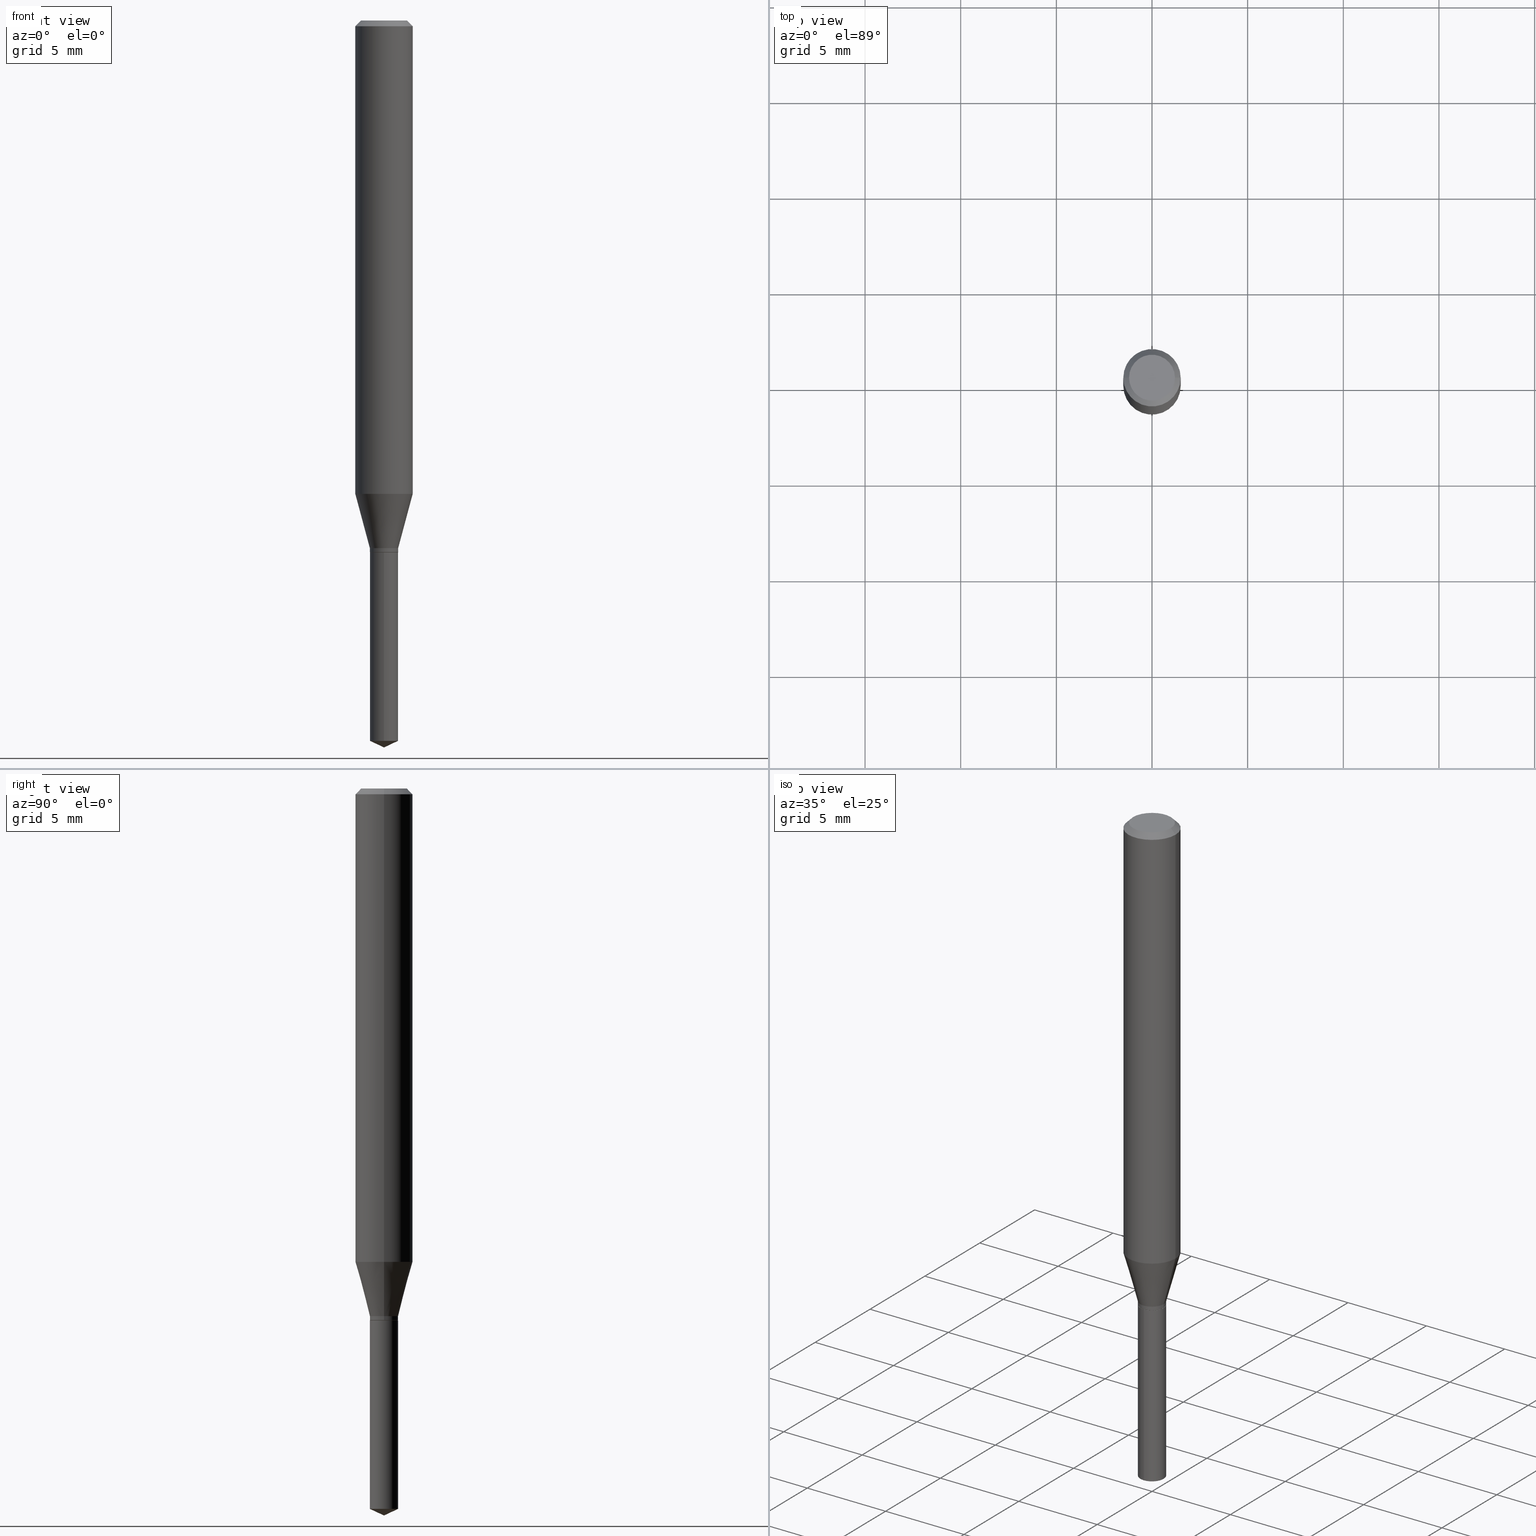
[diagram: canonical four-view strip — front | top / right | iso, engineering-drawing reading convention]
A machine part, canonical four-view strip (front | top / right | iso — engineering-drawing reading convention). The complete STEP part file that produces these views, byte-faithful:
ISO-10303-21;
HEADER;
FILE_DESCRIPTION (( 'STEP AP203' ),
    '1' );
FILE_NAME ('07882.STEP',
    '2024-04-24T05:15:20',
    ( '' ),
    ( '' ),
    'SwSTEP 2.0',
    'SolidWorks 2023',
    '' );
FILE_SCHEMA (( 'CONFIG_CONTROL_DESIGN' ));
ENDSEC;

DATA;
#1 = ORIENTED_EDGE ( 'NONE', *, *, #86, .F. ) ;
#2 = CIRCLE ( 'NONE', #338, 0.05904999999999999832 ) ;
#3 = LOCAL_TIME ( 1, 15, 20.00000000000000000, #38 ) ;
#4 = APPROVAL_ROLE ( '' ) ;
#5 = EDGE_CURVE ( 'NONE', #144, #96, #132, .T. ) ;
#6 = FACE_OUTER_BOUND ( 'NONE', #213, .T. ) ;
#7 = DIRECTION ( 'NONE',  ( -2.445468806185136597E-29, 3.491481338843145583E-15, 1.000000000000000000 ) ) ;
#8 = PRODUCT_DEFINITION ( 'UNKNOWN', '', #329, #336 ) ;
#9 = ORIENTED_EDGE ( 'NONE', *, *, #162, .T. ) ;
#10 = COORDINATED_UNIVERSAL_TIME_OFFSET ( 5, 0, .BEHIND. ) ;
#11 = DIRECTION ( 'NONE',  ( -1.000000000000000000, 6.982962677686265922E-15, -4.876176775795935793E-29 ) ) ;
#12 = CALENDAR_DATE ( 2024, 24, 4 ) ;
#13 = FACE_OUTER_BOUND ( 'NONE', #408, .T. ) ;
#14 = DIRECTION ( 'NONE',  ( 1.000000000000000000, -6.982962677686267499E-15, 4.876176775795936353E-29 ) ) ;
#15 = CONICAL_SURFACE ( 'NONE', #58, 0.02864999999999999838, 0.7853981633972733079 ) ;
#16 = CC_DESIGN_DATE_AND_TIME_ASSIGNMENT ( #41, #231, ( #8 ) ) ;
#17 = CIRCLE ( 'NONE', #354, 0.05904999999999999832 ) ;
#18 = SHAPE_DEFINITION_REPRESENTATION ( #248, #173 ) ;
#19 = DIRECTION ( 'NONE',  ( -2.445468806185136597E-29, 3.491481338843145583E-15, 1.000000000000000000 ) ) ;
#20 = ORIENTED_EDGE ( 'NONE', *, *, #358, .F. ) ;
#21 = DIRECTION ( 'NONE',  ( 1.000000000000000000, -6.982962677686266711E-15, 0.000000000000000000 ) ) ;
#22 = VECTOR ( 'NONE', #204, 39.37007874015748143 ) ;
#23 = ORIENTED_EDGE ( 'NONE', *, *, #162, .F. ) ;
#24 = DIRECTION ( 'NONE',  ( -2.445468806185136597E-29, 3.491481338843145583E-15, 1.000000000000000000 ) ) ;
#25 = ORIENTED_EDGE ( 'NONE', *, *, #5, .F. ) ;
#26 = CARTESIAN_POINT ( 'NONE',  ( -0.02914999999999999883, -3.598242303731074882E-15, -1.085799999999999876 ) ) ;
#27 = APPROVAL ( #387, 'UNSPECIFIED' ) ;
#28 = ORIENTED_EDGE ( 'NONE', *, *, #277, .T. ) ;
#29 = DIRECTION ( 'NONE',  ( -6.982962677686265922E-15, -1.000000000000000000, 4.685845615204568404E-15 ) ) ;
#30 = CC_DESIGN_APPROVAL ( #488, ( #238 ) ) ;
#31 = ORIENTED_EDGE ( 'NONE', *, *, #471, .F. ) ;
#32 = CARTESIAN_POINT ( 'NONE',  ( -0.05905000000000011628, -2.981866418317333587E-15, -0.9742116808536903649 ) ) ;
#33 = CC_DESIGN_PERSON_AND_ORGANIZATION_ASSIGNMENT ( #272, #35, ( #329 ) ) ;
#34 = VERTEX_POINT ( 'NONE', #431 ) ;
#35 = PERSON_AND_ORGANIZATION_ROLE ( 'design_supplier' ) ;
#36 = CIRCLE ( 'NONE', #228, 0.05905000000000011628 ) ;
#37 = CIRCLE ( 'NONE', #164, 0.04724000000000000421 ) ;
#38 = COORDINATED_UNIVERSAL_TIME_OFFSET ( 5, 0, .BEHIND. ) ;
#39 = DIRECTION ( 'NONE',  ( 0.000000000000000000, 0.000000000000000000, 1.000000000000000000 ) ) ;
#40 = MANIFOLD_SOLID_BREP ( 'Body-Move/Copy2[1]', #158 ) ;
#41 = DATE_AND_TIME ( #234, #68 ) ;
#42 = LINE ( 'NONE', #241, #242 ) ;
#43 = AXIS2_PLACEMENT_3D ( 'NONE', #464, #424, #390 ) ;
#44 = LINE ( 'NONE', #457, #170 ) ;
#45 = DIRECTION ( 'NONE',  ( -2.445470214571802396E-29, 3.491479321953280158E-15, 1.000000000000000000 ) ) ;
#46 = ADVANCED_FACE ( 'NONE', ( #292 ), #453, .T. ) ;
#47 = EDGE_LOOP ( 'NONE', ( #25, #84 ) ) ;
#48 = FACE_OUTER_BOUND ( 'NONE', #334, .T. ) ;
#49 = VECTOR ( 'NONE', #121, 39.37007874015747433 ) ;
#50 = AXIS2_PLACEMENT_3D ( 'NONE', #216, #484, #447 ) ;
#51 = DIRECTION ( 'NONE',  ( 1.000000000000000000, -6.982962677686266711E-15, 4.876176775795935793E-29 ) ) ;
#52 = CARTESIAN_POINT ( 'NONE',  ( 3.625425492141842925E-29, -5.176145202690960331E-15, -1.482507131764781771 ) ) ;
#53 = EDGE_CURVE ( 'NONE', #246, #339, #311, .T. ) ;
#54 = ORIENTED_EDGE ( 'NONE', *, *, #333, .F. ) ;
#55 = CARTESIAN_POINT ( 'NONE',  ( 2.676565608369631794E-29, -3.821426325363822773E-15, -1.094499999999999806 ) ) ;
#56 = VERTEX_POINT ( 'NONE', #370 ) ;
#57 = CARTESIAN_POINT ( 'NONE',  ( 3.625425492141842925E-29, -5.176145202690960331E-15, -1.482507131764781771 ) ) ;
#58 = AXIS2_PLACEMENT_3D ( 'NONE', #235, #122, #427 ) ;
#59 = CARTESIAN_POINT ( 'NONE',  ( 2.655290029755821085E-29, -3.791050437715887034E-15, -1.085799999999999876 ) ) ;
#60 = EDGE_CURVE ( 'NONE', #437, #104, #274, .T. ) ;
#61 = EDGE_LOOP ( 'NONE', ( #386, #54, #282, #258 ) ) ;
#62 = ORIENTED_EDGE ( 'NONE', *, *, #428, .T. ) ;
#63 = DIRECTION ( 'NONE',  ( 1.000000000000000000, -6.982962677686268288E-15, 0.000000000000000000 ) ) ;
#64 = ORIENTED_EDGE ( 'NONE', *, *, #53, .F. ) ;
#65 = PLANE ( 'NONE',  #201 ) ;
#66 = DIRECTION ( 'NONE',  ( -2.445468806185136597E-29, 3.491481338843145583E-15, 1.000000000000000000 ) ) ;
#67 = AXIS2_PLACEMENT_3D ( 'NONE', #52, #309, #399 ) ;
#68 = LOCAL_TIME ( 1, 15, 20.00000000000000000, #150 ) ;
#69 = CARTESIAN_POINT ( 'NONE',  ( 2.676565608369631794E-29, -3.821426325363822773E-15, -1.094499999999999806 ) ) ;
#70 = EDGE_CURVE ( 'NONE', #104, #437, #262, .T. ) ;
#71 = CARTESIAN_POINT ( 'NONE',  ( 2.676565608369632355E-29, -3.821426325363822773E-15, -1.094500000000000028 ) ) ;
#72 = PERSON_AND_ORGANIZATION_ROLE ( 'creator' ) ;
#73 = ORIENTED_EDGE ( 'NONE', *, *, #129, .T. ) ;
#74 = AXIS2_PLACEMENT_3D ( 'NONE', #167, #359, #51 ) ;
#75 = AXIS2_PLACEMENT_3D ( 'NONE', #468, #127, #21 ) ;
#76 = APPROVAL ( #80, 'UNSPECIFIED' ) ;
#77 =( NAMED_UNIT ( * ) SI_UNIT ( $, .STERADIAN. ) SOLID_ANGLE_UNIT ( ) );
#78 = CARTESIAN_POINT ( 'NONE',  ( 2.675342873966538993E-29, -3.819680584694400481E-15, -1.093999999999999861 ) ) ;
#79 = ORIENTED_EDGE ( 'NONE', *, *, #60, .T. ) ;
#80 = APPROVAL_STATUS ( 'not_yet_approved' ) ;
#81 = PLANE ( 'NONE',  #209 ) ;
#82 = PERSON_AND_ORGANIZATION ( #349, #111 ) ;
#83 = CARTESIAN_POINT ( 'NONE',  ( 2.655290029755821085E-29, -3.791050437715887034E-15, -1.085799999999999876 ) ) ;
#84 = ORIENTED_EDGE ( 'NONE', *, *, #301, .F. ) ;
#85 = CARTESIAN_POINT ( 'NONE',  ( 2.382404276148889621E-29, -3.401441903783673869E-15, -0.9742116808536903649 ) ) ;
#86 = EDGE_CURVE ( 'NONE', #96, #339, #260, .T. ) ;
#87 = UNCERTAINTY_MEASURE_WITH_UNIT (LENGTH_MEASURE( 1.000000000000000082E-05 ), #389, 'distance_accuracy_value', 'NONE');
#88 = DIRECTION ( 'NONE',  ( -0.7071067811865453523, 2.468850131082234184E-15, -0.7071067811865496822 ) ) ;
#89 = ADVANCED_FACE ( 'NONE', ( #482 ), #293, .T. ) ;
#90 = AXIS2_PLACEMENT_3D ( 'NONE', #128, #165, #240 ) ;
#91 = EDGE_LOOP ( 'NONE', ( #1, #224, #94, #116 ) ) ;
#92 = PLANE ( 'NONE',  #100 ) ;
#93 = DIRECTION ( 'NONE',  ( -2.445468806185136877E-29, 3.491481338843145188E-15, 1.000000000000000000 ) ) ;
#94 = ORIENTED_EDGE ( 'NONE', *, *, #404, .T. ) ;
#95 = CARTESIAN_POINT ( 'NONE',  ( 0.02914999999999999883, -3.994603799770441449E-15, -1.085799999999999876 ) ) ;
#96 = VERTEX_POINT ( 'NONE', #106 ) ;
#97 = DIRECTION ( 'NONE',  ( -2.445470214571802116E-29, 3.491479321953280158E-15, 1.000000000000000000 ) ) ;
#98 = CYLINDRICAL_SURFACE ( 'NONE', #328, 0.05905000000000006077 ) ;
#99 = PRODUCT ( '07882', '07882', '', ( #425 ) ) ;
#100 = AXIS2_PLACEMENT_3D ( 'NONE', #55, #206, #171 ) ;
#101 = ADVANCED_FACE ( 'NONE', ( #402 ), #444, .T. ) ;
#102 = VERTEX_POINT ( 'NONE', #136 ) ;
#103 = DIRECTION ( 'NONE',  ( 1.000000000000000000, -6.982962677686265922E-15, 4.876176775795935793E-29 ) ) ;
#104 = VERTEX_POINT ( 'NONE', #95 ) ;
#105 = FACE_OUTER_BOUND ( 'NONE', #319, .T. ) ;
#106 = CARTESIAN_POINT ( 'NONE',  ( -0.02864999999999999838, -3.615206604394443201E-15, -1.094500000000000028 ) ) ;
#107 = ORIENTED_EDGE ( 'NONE', *, *, #428, .F. ) ;
#108 = DIRECTION ( 'NONE',  ( -6.982962677686265922E-15, -1.000000000000000000, 4.685845615204568404E-15 ) ) ;
#109 = CC_DESIGN_PERSON_AND_ORGANIZATION_ASSIGNMENT ( #335, #118, ( #99 ) ) ;
#110 = CONICAL_SURFACE ( 'NONE', #430, 0.02914999999999999883, 0.2617993877991500740 ) ;
#111 = ORGANIZATION ( 'UNSPECIFIED', 'UNSPECIFIED', '' ) ;
#112 = DATE_AND_TIME ( #160, #436 ) ;
#113 = DIRECTION ( 'NONE',  ( -2.445468806185136597E-29, 3.491481338843145583E-15, 1.000000000000000000 ) ) ;
#114 = CALENDAR_DATE ( 2024, 24, 4 ) ;
#115 = APPLICATION_CONTEXT ( 'configuration controlled 3d designs of mechanical parts and assemblies' ) ;
#116 = ORIENTED_EDGE ( 'NONE', *, *, #182, .F. ) ;
#117 = AXIS2_PLACEMENT_3D ( 'NONE', #476, #352, #131 ) ;
#118 = PERSON_AND_ORGANIZATION_ROLE ( 'design_owner' ) ;
#119 = DIRECTION ( 'NONE',  ( 1.000000000000000000, -6.982962677686268288E-15, 0.000000000000000000 ) ) ;
#120 = PERSON_AND_ORGANIZATION ( #349, #111 ) ;
#121 = DIRECTION ( 'NONE',  ( -0.2588190451025213501, 5.211531920934551042E-15, 0.9659258262890682012 ) ) ;
#122 = DIRECTION ( 'NONE',  ( -2.445468806185136597E-29, 3.491481338843145583E-15, 1.000000000000000000 ) ) ;
#123 = VERTEX_POINT ( 'NONE', #250 ) ;
#124 = LINE ( 'NONE', #393, #377 ) ;
#125 = ADVANCED_FACE ( 'NONE', ( #485 ), #98, .T. ) ;
#126 = AXIS2_PLACEMENT_3D ( 'NONE', #233, #161, #415 ) ;
#127 = DIRECTION ( 'NONE',  ( -2.445468806185136597E-29, 3.491481338843145583E-15, 1.000000000000000000 ) ) ;
#128 = CARTESIAN_POINT ( 'NONE',  ( 2.888098660104663328E-31, -4.123439461173779030E-17, -0.01181000000000006871 ) ) ;
#129 = EDGE_CURVE ( 'NONE', #437, #423, #192, .T. ) ;
#130 = VERTEX_POINT ( 'NONE', #426 ) ;
#131 = DIRECTION ( 'NONE',  ( 1.000000000000000000, -6.982962677686266711E-15, 4.876185090822587894E-29 ) ) ;
#132 = CIRCLE ( 'NONE', #152, 0.02864999999999999838 ) ;
#133 = AXIS2_PLACEMENT_3D ( 'NONE', #57, #210, #369 ) ;
#134 = EDGE_LOOP ( 'NONE', ( #461, #345, #483, #398 ) ) ;
#135 = DIRECTION ( 'NONE',  ( 1.000000000000000000, -6.982962677686266711E-15, 4.876185090822587894E-29 ) ) ;
#136 = CARTESIAN_POINT ( 'NONE',  ( -2.035533620545278904E-16, -0.02915000000000381869, -1.094499999999999806 ) ) ;
#137 = ORIENTED_EDGE ( 'NONE', *, *, #368, .T. ) ;
#138 = ADVANCED_FACE ( 'NONE', ( #475 ), #439, .T. ) ;
#139 = DIRECTION ( 'NONE',  ( 2.445468806185136597E-29, -3.491481338843145583E-15, -1.000000000000000000 ) ) ;
#140 = EDGE_LOOP ( 'NONE', ( #284, #155, #64, #249 ) ) ;
#141 = AXIS2_PLACEMENT_3D ( 'NONE', #341, #344, #196 ) ;
#142 = DIRECTION ( 'NONE',  ( -2.445468806185136597E-29, 3.491481338843145583E-15, 1.000000000000000000 ) ) ;
#143 = AXIS2_PLACEMENT_3D ( 'NONE', #414, #97, #401 ) ;
#144 = VERTEX_POINT ( 'NONE', #314 ) ;
#145 = DIRECTION ( 'NONE',  ( 0.7071067811864237829, -2.468850131080960568E-15, 0.7071067811866712516 ) ) ;
#146 = DIRECTION ( 'NONE',  ( 1.000000000000000000, -6.982962677686268288E-15, 0.000000000000000000 ) ) ;
#147 = EDGE_CURVE ( 'NONE', #123, #331, #473, .T. ) ;
#148 = ORIENTED_EDGE ( 'NONE', *, *, #378, .T. ) ;
#149 = FACE_OUTER_BOUND ( 'NONE', #449, .T. ) ;
#150 = COORDINATED_UNIVERSAL_TIME_OFFSET ( 5, 0, .BEHIND. ) ;
#151 = CLOSED_SHELL ( 'NONE', ( #263, #269, #138, #101, #280, #412, #175, #125, #46, #207, #480, #166 ) ) ;
#152 = AXIS2_PLACEMENT_3D ( 'NONE', #71, #388, #474 ) ;
#153 = ORIENTED_EDGE ( 'NONE', *, *, #129, .F. ) ;
#154 = PERSON_AND_ORGANIZATION_ROLE ( 'classification_officer' ) ;
#155 = ORIENTED_EDGE ( 'NONE', *, *, #86, .T. ) ;
#156 = COORDINATED_UNIVERSAL_TIME_OFFSET ( 5, 0, .BEHIND. ) ;
#157 = FACE_OUTER_BOUND ( 'NONE', #440, .T. ) ;
#158 = CLOSED_SHELL ( 'NONE', ( #89, #395, #247, #383, #350 ) ) ;
#159 = CC_DESIGN_APPROVAL ( #76, ( #8 ) ) ;
#160 = CALENDAR_DATE ( 2024, 24, 4 ) ;
#161 = DIRECTION ( 'NONE',  ( -2.445468806185136597E-29, 3.491481338843145583E-15, 1.000000000000000000 ) ) ;
#162 = EDGE_CURVE ( 'NONE', #339, #437, #361, .T. ) ;
#163 = CARTESIAN_POINT ( 'NONE',  ( 0.04724000000000000421, -3.852183633974369345E-16, -3.380025165621689721E-19 ) ) ;
#164 = AXIS2_PLACEMENT_3D ( 'NONE', #452, #481, #135 ) ;
#165 = DIRECTION ( 'NONE',  ( 2.445468806185136597E-29, -3.491481338843145583E-15, -1.000000000000000000 ) ) ;
#166 = ADVANCED_FACE ( 'NONE', ( #373 ), #15, .T. ) ;
#167 = CARTESIAN_POINT ( 'NONE',  ( 0.000000000000000000, 0.000000000000000000, 0.000000000000000000 ) ) ;
#168 = LINE ( 'NONE', #429, #445 ) ;
#169 = ORIENTED_EDGE ( 'NONE', *, *, #182, .T. ) ;
#170 = VECTOR ( 'NONE', #308, 39.37007874015748143 ) ;
#171 = DIRECTION ( 'NONE',  ( 6.982962677686265922E-15, 1.000000000000000000, -3.491479321953280158E-15 ) ) ;
#172 = CIRCLE ( 'NONE', #133, 0.02914999999999999883 ) ;
#173 = ADVANCED_BREP_SHAPE_REPRESENTATION ( '07882', ( #40, #380, #432 ), #364 ) ;
#174 = ORIENTED_EDGE ( 'NONE', *, *, #315, .T. ) ;
#175 = ADVANCED_FACE ( 'NONE', ( #227 ), #110, .T. ) ;
#176 = LINE ( 'NONE', #376, #422 ) ;
#177 = DIRECTION ( 'NONE',  ( -0.7071067811864237829, 7.493145998869907665E-15, 0.7071067811866712516 ) ) ;
#178 = ORIENTED_EDGE ( 'NONE', *, *, #471, .T. ) ;
#179 = DIRECTION ( 'NONE',  ( 6.439704144417036664E-15, 0.9063077870366530453, 0.4226182617406928910 ) ) ;
#180 = VERTEX_POINT ( 'NONE', #163 ) ;
#181 = APPROVAL_PERSON_ORGANIZATION ( #194, #27, #346 ) ;
#182 = EDGE_CURVE ( 'NONE', #339, #246, #403, .T. ) ;
#183 = VERTEX_POINT ( 'NONE', #347 ) ;
#184 = DIRECTION ( 'NONE',  ( 0.2588190451025213501, 1.565188264969621968E-15, 0.9659258262890682012 ) ) ;
#185 = ORIENTED_EDGE ( 'NONE', *, *, #342, .T. ) ;
#186 = PERSON_AND_ORGANIZATION ( #349, #111 ) ;
#187 = DIRECTION ( 'NONE',  ( 1.000000000000000000, -6.982962677686269077E-15, 0.000000000000000000 ) ) ;
#188 = ORIENTED_EDGE ( 'NONE', *, *, #378, .F. ) ;
#189 = CONICAL_SURFACE ( 'NONE', #254, 84.42940631927480410, 1.134464013796318005 ) ;
#190 = APPROVAL_STATUS ( 'not_yet_approved' ) ;
#191 = PERSON_AND_ORGANIZATION ( #349, #111 ) ;
#192 = LINE ( 'NONE', #307, #49 ) ;
#193 = CARTESIAN_POINT ( 'NONE',  ( 4.132873053354867254E-48, -5.900647395337818946E-34, -1.690012582823346072E-19 ) ) ;
#194 = PERSON_AND_ORGANIZATION ( #349, #111 ) ;
#195 = EDGE_CURVE ( 'NONE', #423, #56, #44, .T. ) ;
#196 = DIRECTION ( 'NONE',  ( 1.000000000000000000, -6.982962677686266711E-15, 0.000000000000000000 ) ) ;
#197 = CC_DESIGN_PERSON_AND_ORGANIZATION_ASSIGNMENT ( #186, #154, ( #238 ) ) ;
#198 = LINE ( 'NONE', #239, #454 ) ;
#199 = CIRCLE ( 'NONE', #75, 0.02864999999999999838 ) ;
#200 = DATE_AND_TIME ( #12, #243 ) ;
#201 = AXIS2_PLACEMENT_3D ( 'NONE', #326, #487, #103 ) ;
#202 = DIRECTION ( 'NONE',  ( 0.7071067811865453523, -7.319954787623248157E-15, -0.7071067811865496822 ) ) ;
#203 = CARTESIAN_POINT ( 'NONE',  ( 0.000000000000000000, 0.000000000000000000, 0.000000000000000000 ) ) ;
#204 = DIRECTION ( 'NONE',  ( -2.445468806185136877E-29, 3.491481338843145188E-15, 1.000000000000000000 ) ) ;
#205 = ORIENTED_EDGE ( 'NONE', *, *, #342, .F. ) ;
#206 = DIRECTION ( 'NONE',  ( 2.445470214571801836E-29, -3.491479321953280158E-15, -1.000000000000000000 ) ) ;
#207 = ADVANCED_FACE ( 'NONE', ( #157 ), #81, .F. ) ;
#208 = ORIENTED_EDGE ( 'NONE', *, *, #277, .F. ) ;
#209 = AXIS2_PLACEMENT_3D ( 'NONE', #193, #221, #11 ) ;
#210 = DIRECTION ( 'NONE',  ( -2.445470214571802116E-29, 3.491479321953280158E-15, 1.000000000000000000 ) ) ;
#211 = VERTEX_POINT ( 'NONE', #271 ) ;
#212 = CYLINDRICAL_SURFACE ( 'NONE', #50, 0.02914999999999999883 ) ;
#213 = EDGE_LOOP ( 'NONE', ( #31, #337, #264 ) ) ;
#214 = PRODUCT_RELATED_PRODUCT_CATEGORY ( 'detail', '', ( #99 ) ) ;
#215 = ORIENTED_EDGE ( 'NONE', *, *, #70, .F. ) ;
#216 = CARTESIAN_POINT ( 'NONE',  ( 0.000000000000000000, 0.000000000000000000, 0.000000000000000000 ) ) ;
#217 = VECTOR ( 'NONE', #177, 39.37007874015748143 ) ;
#218 = CARTESIAN_POINT ( 'NONE',  ( 2.888098660104663328E-31, -4.123439461173779030E-17, -0.01181000000000006871 ) ) ;
#219 = DIRECTION ( 'NONE',  ( -2.445470214571802116E-29, 3.491479321953280158E-15, 1.000000000000000000 ) ) ;
#220 =( NAMED_UNIT ( * ) PLANE_ANGLE_UNIT ( ) SI_UNIT ( $, .RADIAN. ) );
#221 = DIRECTION ( 'NONE',  ( 2.438088387897960049E-29, -3.491481338843145188E-15, -1.000000000000000000 ) ) ;
#222 = ORIENTED_EDGE ( 'NONE', *, *, #333, .T. ) ;
#223 = EDGE_CURVE ( 'NONE', #123, #423, #462, .T. ) ;
#224 = ORIENTED_EDGE ( 'NONE', *, *, #301, .T. ) ;
#225 = PERSON_AND_ORGANIZATION ( #349, #111 ) ;
#226 = DIRECTION ( 'NONE',  ( 1.000000000000000000, -6.982962677686266711E-15, 4.876176775795935793E-29 ) ) ;
#227 = FACE_OUTER_BOUND ( 'NONE', #287, .T. ) ;
#228 = AXIS2_PLACEMENT_3D ( 'NONE', #85, #279, #433 ) ;
#229 = VECTOR ( 'NONE', #450, 39.37007874015748854 ) ;
#230 = EDGE_LOOP ( 'NONE', ( #374, #28, #322, #268 ) ) ;
#231 = DATE_TIME_ROLE ( 'creation_date' ) ;
#232 = DIRECTION ( 'NONE',  ( -2.445468806185136597E-29, 3.491481338843145583E-15, 1.000000000000000000 ) ) ;
#233 = CARTESIAN_POINT ( 'NONE',  ( 2.675342873966538993E-29, -3.819680584694400481E-15, -1.093999999999999861 ) ) ;
#234 = CALENDAR_DATE ( 2024, 24, 4 ) ;
#235 = CARTESIAN_POINT ( 'NONE',  ( 2.676565608369632355E-29, -3.821426325363822773E-15, -1.094500000000000028 ) ) ;
#236 = EDGE_CURVE ( 'NONE', #331, #56, #2, .T. ) ;
#237 = AXIS2_PLACEMENT_3D ( 'NONE', #356, #139, #294 ) ;
#238 = SECURITY_CLASSIFICATION ( '', '', #456 ) ;
#239 = CARTESIAN_POINT ( 'NONE',  ( -2.035533620545278904E-16, -0.02915000000000381869, -1.094499999999999806 ) ) ;
#240 = DIRECTION ( 'NONE',  ( -1.000000000000000000, 6.982962677686266711E-15, 0.000000000000000000 ) ) ;
#241 = CARTESIAN_POINT ( 'NONE',  ( 0.05904999999999999832, -4.463468013801466955E-16, -0.01181000000000006871 ) ) ;
#242 = VECTOR ( 'NONE', #202, 39.37007874015748143 ) ;
#243 = LOCAL_TIME ( 1, 15, 20.00000000000000000, #460 ) ;
#244 = CYLINDRICAL_SURFACE ( 'NONE', #317, 0.02914999999999999883 ) ;
#245 = CARTESIAN_POINT ( 'NONE',  ( 0.05905000000000006077, -4.123439461173744764E-16, 2.879382386107503023E-30 ) ) ;
#246 = VERTEX_POINT ( 'NONE', #303 ) ;
#247 = ADVANCED_FACE ( 'NONE', ( #6 ), #421, .T. ) ;
#248 = PRODUCT_DEFINITION_SHAPE ( 'NONE', 'NONE',  #8 ) ;
#249 = ORIENTED_EDGE ( 'NONE', *, *, #404, .F. ) ;
#250 = CARTESIAN_POINT ( 'NONE',  ( 0.05905000000000011628, -3.813785849901049183E-15, -0.9742116808536903649 ) ) ;
#251 = ORIENTED_EDGE ( 'NONE', *, *, #434, .F. ) ;
#252 = AXIS2_PLACEMENT_3D ( 'NONE', #351, #360, #278 ) ;
#253 = DIRECTION ( 'NONE',  ( -2.445470214571802116E-29, 3.491479321953280158E-15, 1.000000000000000000 ) ) ;
#254 = AXIS2_PLACEMENT_3D ( 'NONE', #296, #253, #407 ) ;
#255 = CARTESIAN_POINT ( 'NONE',  ( 0.000000000000000000, 0.000000000000000000, 0.000000000000000000 ) ) ;
#256 = EDGE_CURVE ( 'NONE', #180, #331, #42, .T. ) ;
#257 = ORIENTED_EDGE ( 'NONE', *, *, #70, .T. ) ;
#258 = ORIENTED_EDGE ( 'NONE', *, *, #458, .T. ) ;
#259 = CARTESIAN_POINT ( 'NONE',  ( 0.02864999999999999838, -4.021488206079534971E-15, -1.094500000000000028 ) ) ;
#260 = LINE ( 'NONE', #330, #217 ) ;
#261 = CARTESIAN_POINT ( 'NONE',  ( 3.658664905062460986E-29, -5.223606628546217219E-15, -1.496099999999999985 ) ) ;
#262 = CIRCLE ( 'NONE', #384, 0.02914999999999999883 ) ;
#263 = ADVANCED_FACE ( 'NONE', ( #472 ), #469, .T. ) ;
#264 = ORIENTED_EDGE ( 'NONE', *, *, #286, .F. ) ;
#265 = DATE_AND_TIME ( #114, #3 ) ;
#266 = DIRECTION ( 'NONE',  ( -2.445468806185136597E-29, 3.491481338843145583E-15, 1.000000000000000000 ) ) ;
#267 = LOCAL_TIME ( 1, 15, 20.00000000000000000, #156 ) ;
#268 = ORIENTED_EDGE ( 'NONE', *, *, #458, .F. ) ;
#269 = ADVANCED_FACE ( 'NONE', ( #13 ), #304, .T. ) ;
#270 = DATE_AND_TIME ( #299, #267 ) ;
#271 = CARTESIAN_POINT ( 'NONE',  ( 2.071232074741054095E-16, 0.02914999999999482241, -1.482507131764781771 ) ) ;
#272 = PERSON_AND_ORGANIZATION ( #349, #111 ) ;
#273 = CARTESIAN_POINT ( 'NONE',  ( 0.02914999999999999883, -3.994603799770441449E-15, -1.085799999999999876 ) ) ;
#274 = CIRCLE ( 'NONE', #396, 0.02914999999999999883 ) ;
#275 = CC_DESIGN_SECURITY_CLASSIFICATION ( #238, ( #329 ) ) ;
#276 = DIRECTION ( 'NONE',  ( -2.445470214571802396E-29, 3.491479321953280158E-15, 1.000000000000000000 ) ) ;
#277 = EDGE_CURVE ( 'NONE', #423, #123, #36, .T. ) ;
#278 = DIRECTION ( 'NONE',  ( 1.000000000000000000, -6.982962677686266711E-15, 0.000000000000000000 ) ) ;
#279 = DIRECTION ( 'NONE',  ( -2.445468806185136597E-29, 3.491481338843145583E-15, 1.000000000000000000 ) ) ;
#280 = ADVANCED_FACE ( 'NONE', ( #438 ), #244, .T. ) ;
#281 = CARTESIAN_POINT ( 'NONE',  ( -0.02914999999999999536, -3.598242303731074882E-15, -1.093999999999999861 ) ) ;
#282 = ORIENTED_EDGE ( 'NONE', *, *, #310, .T. ) ;
#283 = FACE_OUTER_BOUND ( 'NONE', #47, .T. ) ;
#284 = ORIENTED_EDGE ( 'NONE', *, *, #5, .T. ) ;
#285 = CARTESIAN_POINT ( 'NONE',  ( 2.676565608369631794E-29, -3.821426325363822773E-15, -1.094499999999999806 ) ) ;
#286 = EDGE_CURVE ( 'NONE', #211, #486, #288, .T. ) ;
#287 = EDGE_LOOP ( 'NONE', ( #153, #79, #489, #208 ) ) ;
#288 = CIRCLE ( 'NONE', #67, 0.02914999999999999883 ) ;
#289 = AXIS2_PLACEMENT_3D ( 'NONE', #69, #490, #29 ) ;
#290 = ORIENTED_EDGE ( 'NONE', *, *, #310, .F. ) ;
#291 = DIRECTION ( 'NONE',  ( 1.000000000000000000, -6.982962677686266711E-15, 0.000000000000000000 ) ) ;
#292 = FACE_OUTER_BOUND ( 'NONE', #61, .T. ) ;
#293 = CYLINDRICAL_SURFACE ( 'NONE', #477, 0.02914999999999999883 ) ;
#294 = DIRECTION ( 'NONE',  ( -1.000000000000000000, 6.982962677686266711E-15, 0.000000000000000000 ) ) ;
#295 = EDGE_LOOP ( 'NONE', ( #257, #73, #410, #20 ) ) ;
#296 = CARTESIAN_POINT ( 'NONE',  ( -9.261968845786000133E-28, 1.322362114038720264E-13, 37.87397874015748300 ) ) ;
#297 = AXIS2_PLACEMENT_3D ( 'NONE', #324, #66, #321 ) ;
#298 = EDGE_CURVE ( 'NONE', #246, #104, #435, .T. ) ;
#299 = CALENDAR_DATE ( 2024, 24, 4 ) ;
#300 = PERSON_AND_ORGANIZATION_ROLE ( 'creator' ) ;
#301 = EDGE_CURVE ( 'NONE', #96, #144, #199, .T. ) ;
#302 = ORIENTED_EDGE ( 'NONE', *, *, #298, .T. ) ;
#303 = CARTESIAN_POINT ( 'NONE',  ( 0.02914999999999999536, -4.023233946748955686E-15, -1.093999999999999861 ) ) ;
#304 = CONICAL_SURFACE ( 'NONE', #90, 0.05904999999999999832, 0.7853981633974452814 ) ;
#305 = APPROVAL_PERSON_ORGANIZATION ( #191, #76, #4 ) ;
#306 = CARTESIAN_POINT ( 'NONE',  ( 0.000000000000000000, 0.000000000000000000, 0.000000000000000000 ) ) ;
#307 = CARTESIAN_POINT ( 'NONE',  ( -0.02914999999999999883, -3.583927230241817764E-15, -1.085799999999999876 ) ) ;
#308 = DIRECTION ( 'NONE',  ( -2.445468806185136877E-29, 3.491481338843145188E-15, 1.000000000000000000 ) ) ;
#309 = DIRECTION ( 'NONE',  ( -2.445470214571802116E-29, 3.491479321953280158E-15, 1.000000000000000000 ) ) ;
#310 = EDGE_CURVE ( 'NONE', #183, #56, #168, .T. ) ;
#311 = CIRCLE ( 'NONE', #126, 0.02914999999999999536 ) ;
#312 = VECTOR ( 'NONE', #184, 39.37007874015747433 ) ;
#313 = ORIENTED_EDGE ( 'NONE', *, *, #53, .T. ) ;
#314 = CARTESIAN_POINT ( 'NONE',  ( 0.02864999999999999838, -4.021488206079534971E-15, -1.094500000000000028 ) ) ;
#315 = EDGE_CURVE ( 'NONE', #211, #130, #124, .T. ) ;
#316 = CARTESIAN_POINT ( 'NONE',  ( 0.05904999999999999832, -4.535783407291118600E-16, -0.01181000000000006871 ) ) ;
#317 = AXIS2_PLACEMENT_3D ( 'NONE', #203, #19, #14 ) ;
#318 = AXIS2_PLACEMENT_3D ( 'NONE', #285, #443, #108 ) ;
#319 = EDGE_LOOP ( 'NONE', ( #365, #382, #185, #400 ) ) ;
#320 = LINE ( 'NONE', #259, #385 ) ;
#321 = DIRECTION ( 'NONE',  ( 1.000000000000000000, -6.982962677686268288E-15, 0.000000000000000000 ) ) ;
#322 = ORIENTED_EDGE ( 'NONE', *, *, #147, .T. ) ;
#323 = CARTESIAN_POINT ( 'NONE',  ( -2.035533620545183994E-16, -0.02915000000000517524, -1.482507131764781771 ) ) ;
#324 = CARTESIAN_POINT ( 'NONE',  ( 2.655290029755821085E-29, -3.791050437715887034E-15, -1.085799999999999876 ) ) ;
#325 = ORIENTED_EDGE ( 'NONE', *, *, #434, .T. ) ;
#326 = CARTESIAN_POINT ( 'NONE',  ( -9.672584195120151305E-30, -9.039589726874357845E-15, -1.094500000000000028 ) ) ;
#327 = ORIENTED_EDGE ( 'NONE', *, *, #298, .F. ) ;
#328 = AXIS2_PLACEMENT_3D ( 'NONE', #255, #113, #226 ) ;
#329 = PRODUCT_DEFINITION_FORMATION_WITH_SPECIFIED_SOURCE ( 'ANY', '', #99, .NOT_KNOWN. ) ;
#330 = CARTESIAN_POINT ( 'NONE',  ( -0.02864999999999999838, -3.617855831568554402E-15, -1.094500000000000028 ) ) ;
#331 = VERTEX_POINT ( 'NONE', #316 ) ;
#332 = FACE_OUTER_BOUND ( 'NONE', #362, .T. ) ;
#333 = EDGE_CURVE ( 'NONE', #183, #180, #405, .T. ) ;
#334 = EDGE_LOOP ( 'NONE', ( #148, #137 ) ) ;
#335 = PERSON_AND_ORGANIZATION ( #349, #111 ) ;
#336 = DESIGN_CONTEXT ( 'detailed design', #459, 'design' ) ;
#337 = ORIENTED_EDGE ( 'NONE', *, *, #448, .T. ) ;
#338 = AXIS2_PLACEMENT_3D ( 'NONE', #417, #7, #381 ) ;
#339 = VERTEX_POINT ( 'NONE', #281 ) ;
#340 = APPROVAL_ROLE ( '' ) ;
#341 = CARTESIAN_POINT ( 'NONE',  ( 2.382404276148889621E-29, -3.401441903783673869E-15, -0.9742116808536903649 ) ) ;
#342 = EDGE_CURVE ( 'NONE', #486, #102, #198, .T. ) ;
#343 = DIRECTION ( 'NONE',  ( 1.000000000000000000, 0.000000000000000000, 0.000000000000000000 ) ) ;
#344 = DIRECTION ( 'NONE',  ( -2.445468806185136597E-29, 3.491481338843145583E-15, 1.000000000000000000 ) ) ;
#345 = ORIENTED_EDGE ( 'NONE', *, *, #195, .T. ) ;
#346 = APPROVAL_ROLE ( '' ) ;
#347 = CARTESIAN_POINT ( 'NONE',  ( -0.04724000000000000421, 3.504923541997677355E-16, -3.380025165670481712E-19 ) ) ;
#348 = APPROVAL_PERSON_ORGANIZATION ( #225, #488, #340 ) ;
#349 = PERSON ( 'UNSPECIFIED', 'UNSPECIFIED', 'UNSPECIFIED', ('UNSPECIFIED'), ('UNSPECIFIED'), ('UNSPECIFIED') ) ;
#350 = ADVANCED_FACE ( 'NONE', ( #48 ), #92, .F. ) ;
#351 = CARTESIAN_POINT ( 'NONE',  ( 2.676565608369632355E-29, -3.821426325363822773E-15, -1.094500000000000028 ) ) ;
#352 = DIRECTION ( 'NONE',  ( -2.445468806185136597E-29, 3.491481338843145583E-15, 1.000000000000000000 ) ) ;
#353 = VECTOR ( 'NONE', #394, 39.37007874015748143 ) ;
#354 = AXIS2_PLACEMENT_3D ( 'NONE', #218, #411, #291 ) ;
#355 = APPROVAL_DATE_TIME ( #200, #488 ) ;
#356 = CARTESIAN_POINT ( 'NONE',  ( 2.888098660104663328E-31, -4.123439461173779030E-17, -0.01181000000000006871 ) ) ;
#357 = CARTESIAN_POINT ( 'NONE',  ( 0.02914999999999999883, -2.035533620545546870E-16, 1.421405530144515358E-30 ) ) ;
#358 = EDGE_CURVE ( 'NONE', #104, #123, #467, .T. ) ;
#359 = DIRECTION ( 'NONE',  ( -2.445468806185136597E-29, 3.491481338843145583E-15, 1.000000000000000000 ) ) ;
#360 = DIRECTION ( 'NONE',  ( -2.445468806185136597E-29, 3.491481338843145583E-15, 1.000000000000000000 ) ) ;
#361 = LINE ( 'NONE', #478, #363 ) ;
#362 = EDGE_LOOP ( 'NONE', ( #446, #178, #107 ) ) ;
#363 = VECTOR ( 'NONE', #93, 39.37007874015748143 ) ;
#364 =( GEOMETRIC_REPRESENTATION_CONTEXT ( 3 ) GLOBAL_UNCERTAINTY_ASSIGNED_CONTEXT ( ( #87 ) ) GLOBAL_UNIT_ASSIGNED_CONTEXT ( ( #389, #220, #77 ) ) REPRESENTATION_CONTEXT ( 'NONE', 'WORKASPACE' ) );
#365 = ORIENTED_EDGE ( 'NONE', *, *, #315, .F. ) ;
#366 = LINE ( 'NONE', #261, #229 ) ;
#367 = EDGE_LOOP ( 'NONE', ( #313, #9, #215, #327 ) ) ;
#368 = EDGE_CURVE ( 'NONE', #130, #102, #470, .T. ) ;
#369 = DIRECTION ( 'NONE',  ( -6.982962677686265922E-15, -1.000000000000000000, 0.000000000000000000 ) ) ;
#370 = CARTESIAN_POINT ( 'NONE',  ( -0.05904999999999999832, -1.301762663731365517E-15, -0.01181000000000006871 ) ) ;
#371 = ORIENTED_EDGE ( 'NONE', *, *, #256, .T. ) ;
#372 = CYLINDRICAL_SURFACE ( 'NONE', #143, 0.02914999999999999883 ) ;
#373 = FACE_OUTER_BOUND ( 'NONE', #91, .T. ) ;
#374 = ORIENTED_EDGE ( 'NONE', *, *, #195, .F. ) ;
#375 = AXIS2_PLACEMENT_3D ( 'NONE', #78, #232, #187 ) ;
#376 = CARTESIAN_POINT ( 'NONE',  ( 3.658668015054778287E-29, -5.223602213574301462E-15, -1.496099999999999985 ) ) ;
#377 = VECTOR ( 'NONE', #276, 39.37007874015748143 ) ;
#378 = EDGE_CURVE ( 'NONE', #102, #130, #397, .T. ) ;
#379 =( LENGTH_UNIT ( ) NAMED_UNIT ( * ) SI_UNIT ( $, .METRE. ) );
#380 = MANIFOLD_SOLID_BREP ( 'Body-Move/Copy2[2]', #151 ) ;
#381 = DIRECTION ( 'NONE',  ( 1.000000000000000000, -6.982962677686266711E-15, 0.000000000000000000 ) ) ;
#382 = ORIENTED_EDGE ( 'NONE', *, *, #286, .T. ) ;
#383 = ADVANCED_FACE ( 'NONE', ( #105 ), #372, .T. ) ;
#384 = AXIS2_PLACEMENT_3D ( 'NONE', #59, #24, #146 ) ;
#385 = VECTOR ( 'NONE', #145, 39.37007874015748143 ) ;
#386 = ORIENTED_EDGE ( 'NONE', *, *, #256, .F. ) ;
#387 = APPROVAL_STATUS ( 'not_yet_approved' ) ;
#388 = DIRECTION ( 'NONE',  ( -2.445468806185136597E-29, 3.491481338843145583E-15, 1.000000000000000000 ) ) ;
#389 =( CONVERSION_BASED_UNIT ( 'INCH', #391 ) LENGTH_UNIT ( ) NAMED_UNIT ( #442 ) );
#390 = DIRECTION ( 'NONE',  ( -6.982962677686267499E-15, -1.000000000000000000, 3.520397390770434543E-15 ) ) ;
#391 = LENGTH_MEASURE_WITH_UNIT ( LENGTH_MEASURE( 0.02539999999999999897 ), #379 );
#392 = CC_DESIGN_PERSON_AND_ORGANIZATION_ASSIGNMENT ( #120, #72, ( #329 ) ) ;
#393 = CARTESIAN_POINT ( 'NONE',  ( 2.071232074740959185E-16, 0.02914999999999617897, -1.094500000000000028 ) ) ;
#394 = DIRECTION ( 'NONE',  ( -2.445468806185136877E-29, 3.491481338843145188E-15, 1.000000000000000000 ) ) ;
#395 = ADVANCED_FACE ( 'NONE', ( #332 ), #189, .T. ) ;
#396 = AXIS2_PLACEMENT_3D ( 'NONE', #409, #142, #63 ) ;
#397 = CIRCLE ( 'NONE', #289, 0.02914999999999999883 ) ;
#398 = ORIENTED_EDGE ( 'NONE', *, *, #147, .F. ) ;
#399 = DIRECTION ( 'NONE',  ( -6.982962677686265922E-15, -1.000000000000000000, 0.000000000000000000 ) ) ;
#400 = ORIENTED_EDGE ( 'NONE', *, *, #368, .F. ) ;
#401 = DIRECTION ( 'NONE',  ( -6.982962677686265922E-15, -1.000000000000000000, 4.685845615204568404E-15 ) ) ;
#402 = FACE_OUTER_BOUND ( 'NONE', #295, .T. ) ;
#403 = CIRCLE ( 'NONE', #375, 0.02914999999999999536 ) ;
#404 = EDGE_CURVE ( 'NONE', #144, #246, #320, .T. ) ;
#405 = CIRCLE ( 'NONE', #117, 0.04724000000000000421 ) ;
#406 = ORIENTED_EDGE ( 'NONE', *, *, #60, .F. ) ;
#407 = DIRECTION ( 'NONE',  ( -6.982962677686267499E-15, -1.000000000000000000, 3.520397390770434543E-15 ) ) ;
#408 = EDGE_LOOP ( 'NONE', ( #251, #371, #479, #290 ) ) ;
#409 = CARTESIAN_POINT ( 'NONE',  ( 2.655290029755821085E-29, -3.791050437715887034E-15, -1.085799999999999876 ) ) ;
#410 = ORIENTED_EDGE ( 'NONE', *, *, #223, .F. ) ;
#411 = DIRECTION ( 'NONE',  ( -2.445468806185136597E-29, 3.491481338843145583E-15, 1.000000000000000000 ) ) ;
#412 = ADVANCED_FACE ( 'NONE', ( #149 ), #212, .T. ) ;
#413 = DIRECTION ( 'NONE',  ( -6.982962677686265922E-15, -1.000000000000000000, 4.685845615204568404E-15 ) ) ;
#414 = CARTESIAN_POINT ( 'NONE',  ( 2.676565608369631794E-29, -3.821426325363822773E-15, -1.094499999999999806 ) ) ;
#415 = DIRECTION ( 'NONE',  ( 1.000000000000000000, -6.982962677686269077E-15, 0.000000000000000000 ) ) ;
#416 = APPLICATION_PROTOCOL_DEFINITION ( 'international standard', 'config_control_design', 1994, #459 ) ;
#417 = CARTESIAN_POINT ( 'NONE',  ( 2.888098660104663328E-31, -4.123439461173779030E-17, -0.01181000000000006871 ) ) ;
#418 = DATE_TIME_ROLE ( 'classification_date' ) ;
#419 = CC_DESIGN_DATE_AND_TIME_ASSIGNMENT ( #265, #418, ( #238 ) ) ;
#420 = APPROVAL_DATE_TIME ( #270, #76 ) ;
#421 = CONICAL_SURFACE ( 'NONE', #43, 84.42940631927480410, 1.134464013796318005 ) ;
#422 = VECTOR ( 'NONE', #179, 39.37007874015748143 ) ;
#423 = VERTEX_POINT ( 'NONE', #32 ) ;
#424 = DIRECTION ( 'NONE',  ( -2.445470214571802116E-29, 3.491479321953280158E-15, 1.000000000000000000 ) ) ;
#425 = MECHANICAL_CONTEXT ( 'NONE', #115, 'mechanical' ) ;
#426 = CARTESIAN_POINT ( 'NONE',  ( 2.071232074741055081E-16, 0.02914999999999617897, -1.094500000000000028 ) ) ;
#427 = DIRECTION ( 'NONE',  ( 1.000000000000000000, -6.982962677686266711E-15, 0.000000000000000000 ) ) ;
#428 = EDGE_CURVE ( 'NONE', #486, #211, #172, .T. ) ;
#429 = CARTESIAN_POINT ( 'NONE',  ( -0.05904999999999999832, 3.711095515056362547E-16, -0.01181000000000006871 ) ) ;
#430 = AXIS2_PLACEMENT_3D ( 'NONE', #83, #266, #119 ) ;
#431 = CARTESIAN_POINT ( 'NONE',  ( 3.658667988020872822E-29, -5.223602213574301462E-15, -1.496099999999999985 ) ) ;
#432 = AXIS2_PLACEMENT_3D ( 'NONE', #306, #39, #343 ) ;
#433 = DIRECTION ( 'NONE',  ( 1.000000000000000000, -6.982962677686266711E-15, 0.000000000000000000 ) ) ;
#434 = EDGE_CURVE ( 'NONE', #180, #183, #37, .T. ) ;
#435 = LINE ( 'NONE', #357, #353 ) ;
#436 = LOCAL_TIME ( 1, 15, 20.00000000000000000, #10 ) ;
#437 = VERTEX_POINT ( 'NONE', #26 ) ;
#438 = FACE_OUTER_BOUND ( 'NONE', #367, .T. ) ;
#439 = CYLINDRICAL_SURFACE ( 'NONE', #74, 0.05905000000000006077 ) ;
#440 = EDGE_LOOP ( 'NONE', ( #222, #325 ) ) ;
#441 = EDGE_LOOP ( 'NONE', ( #62, #174, #188, #205 ) ) ;
#442 = DIMENSIONAL_EXPONENTS ( 1.000000000000000000, 0.000000000000000000, 0.000000000000000000, 0.000000000000000000, 0.000000000000000000, 0.000000000000000000, 0.000000000000000000 ) ;
#443 = DIRECTION ( 'NONE',  ( -2.445470214571802116E-29, 3.491479321953280158E-15, 1.000000000000000000 ) ) ;
#444 = CONICAL_SURFACE ( 'NONE', #297, 0.02914999999999999883, 0.2617993877991500740 ) ;
#445 = VECTOR ( 'NONE', #88, 39.37007874015748143 ) ;
#446 = ORIENTED_EDGE ( 'NONE', *, *, #448, .F. ) ;
#447 = DIRECTION ( 'NONE',  ( 1.000000000000000000, -6.982962677686267499E-15, 4.876176775795936353E-29 ) ) ;
#448 = EDGE_CURVE ( 'NONE', #34, #486, #366, .T. ) ;
#449 = EDGE_LOOP ( 'NONE', ( #23, #169, #302, #406 ) ) ;
#450 = DIRECTION ( 'NONE',  ( -6.328713451373380423E-15, -0.9063077870366499367, 0.4226182617406991082 ) ) ;
#451 = CARTESIAN_POINT ( 'NONE',  ( 2.676565608369631794E-29, -3.821426325363822773E-15, -1.094499999999999806 ) ) ;
#452 = CARTESIAN_POINT ( 'NONE',  ( 8.265746106709734507E-48, -1.180129479067563789E-33, -3.380025165646692144E-19 ) ) ;
#453 = CONICAL_SURFACE ( 'NONE', #237, 0.05904999999999999832, 0.7853981633974452814 ) ;
#454 = VECTOR ( 'NONE', #45, 39.37007874015748143 ) ;
#455 = APPLICATION_PROTOCOL_DEFINITION ( 'international standard', 'config_control_design', 1994, #115 ) ;
#456 = SECURITY_CLASSIFICATION_LEVEL ( 'unclassified' ) ;
#457 = CARTESIAN_POINT ( 'NONE',  ( -0.05905000000000006077, 4.195754854663395916E-16, -2.904631170795524694E-30 ) ) ;
#458 = EDGE_CURVE ( 'NONE', #56, #331, #17, .T. ) ;
#459 = APPLICATION_CONTEXT ( 'configuration controlled 3d designs of mechanical parts and assemblies' ) ;
#460 = COORDINATED_UNIVERSAL_TIME_OFFSET ( 5, 0, .BEHIND. ) ;
#461 = ORIENTED_EDGE ( 'NONE', *, *, #223, .T. ) ;
#462 = CIRCLE ( 'NONE', #141, 0.05905000000000011628 ) ;
#463 = CC_DESIGN_APPROVAL ( #27, ( #329 ) ) ;
#464 = CARTESIAN_POINT ( 'NONE',  ( -9.261968845786000133E-28, 1.322362114038720264E-13, 37.87397874015748300 ) ) ;
#465 = CC_DESIGN_PERSON_AND_ORGANIZATION_ASSIGNMENT ( #82, #300, ( #8 ) ) ;
#466 = APPROVAL_DATE_TIME ( #112, #27 ) ;
#467 = LINE ( 'NONE', #273, #312 ) ;
#468 = CARTESIAN_POINT ( 'NONE',  ( 2.676565608369632355E-29, -3.821426325363822773E-15, -1.094500000000000028 ) ) ;
#469 = CONICAL_SURFACE ( 'NONE', #252, 0.02864999999999999838, 0.7853981633972733079 ) ;
#470 = CIRCLE ( 'NONE', #318, 0.02914999999999999883 ) ;
#471 = EDGE_CURVE ( 'NONE', #34, #211, #176, .T. ) ;
#472 = FACE_OUTER_BOUND ( 'NONE', #140, .T. ) ;
#473 = LINE ( 'NONE', #245, #22 ) ;
#474 = DIRECTION ( 'NONE',  ( 1.000000000000000000, -6.982962677686266711E-15, 0.000000000000000000 ) ) ;
#475 = FACE_OUTER_BOUND ( 'NONE', #134, .T. ) ;
#476 = CARTESIAN_POINT ( 'NONE',  ( 8.265746106709734507E-48, -1.180129479067563789E-33, -3.380025165646692144E-19 ) ) ;
#477 = AXIS2_PLACEMENT_3D ( 'NONE', #451, #219, #413 ) ;
#478 = CARTESIAN_POINT ( 'NONE',  ( -0.02914999999999999883, 2.071232074740691959E-16, -1.433869578809304953E-30 ) ) ;
#479 = ORIENTED_EDGE ( 'NONE', *, *, #236, .T. ) ;
#480 = ADVANCED_FACE ( 'NONE', ( #283 ), #65, .F. ) ;
#481 = DIRECTION ( 'NONE',  ( -2.445468806185136597E-29, 3.491481338843145583E-15, 1.000000000000000000 ) ) ;
#482 = FACE_OUTER_BOUND ( 'NONE', #441, .T. ) ;
#483 = ORIENTED_EDGE ( 'NONE', *, *, #236, .F. ) ;
#484 = DIRECTION ( 'NONE',  ( -2.445468806185136597E-29, 3.491481338843145583E-15, 1.000000000000000000 ) ) ;
#485 = FACE_OUTER_BOUND ( 'NONE', #230, .T. ) ;
#486 = VERTEX_POINT ( 'NONE', #323 ) ;
#487 = DIRECTION ( 'NONE',  ( -2.438088387897960049E-29, 3.491481338843145188E-15, 1.000000000000000000 ) ) ;
#488 = APPROVAL ( #190, 'UNSPECIFIED' ) ;
#489 = ORIENTED_EDGE ( 'NONE', *, *, #358, .T. ) ;
#490 = DIRECTION ( 'NONE',  ( -2.445470214571802116E-29, 3.491479321953280158E-15, 1.000000000000000000 ) ) ;
ENDSEC;
END-ISO-10303-21;
